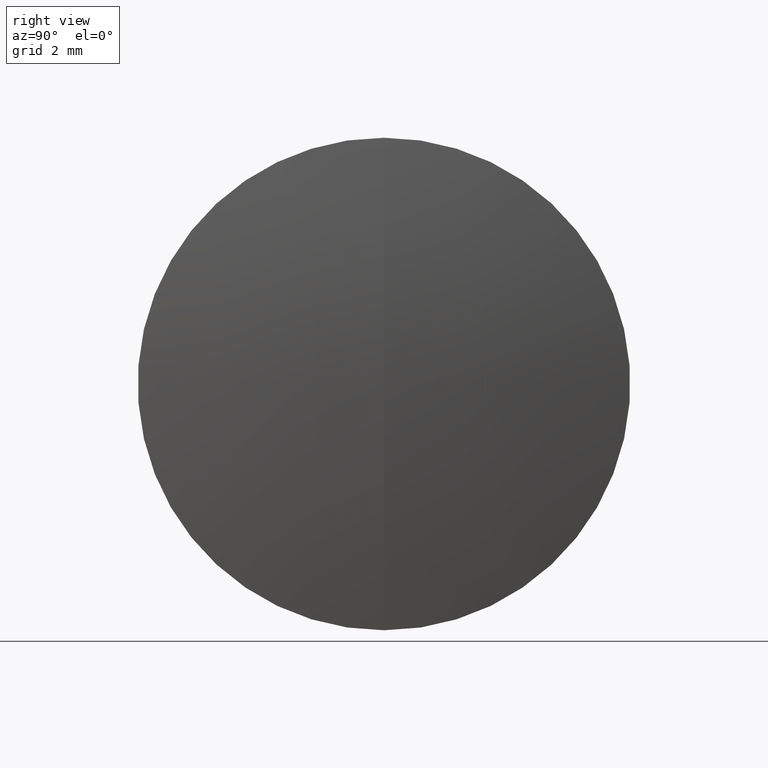
[diagram: clean part render]
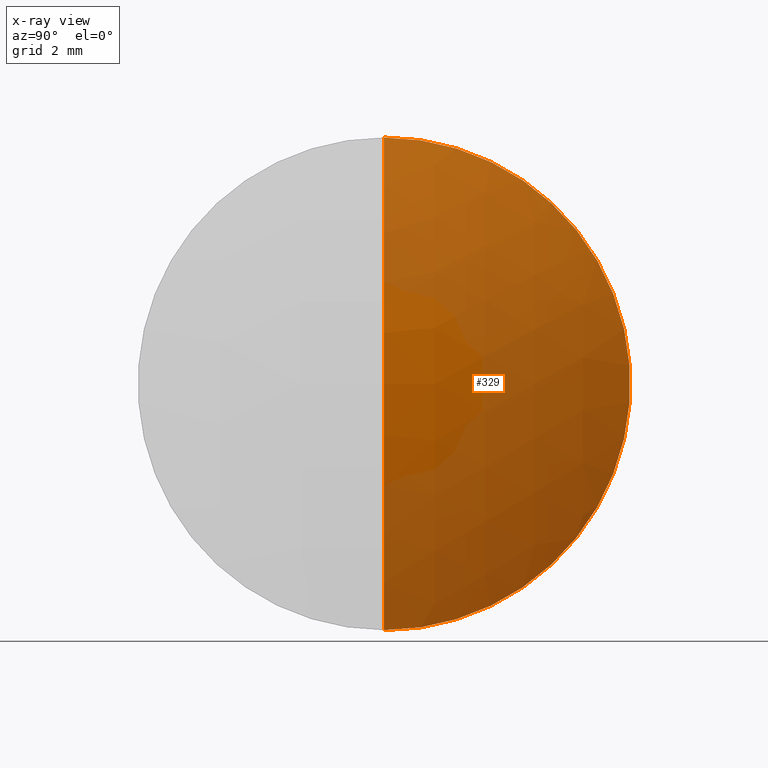
[diagram: x-ray — body ghosted, one internal face saturated and labeled with its STEP entity id]
A machine part, right view, then the same camera in x-ray: the body is ghosted and one INTERNAL B-rep face — a face not visible from any outside direction — is saturated and labeled: STEP entity #329.
In plain terms, the highlighted spherical surface has radius 14.496 mm.
Its self-contained STEP definition (entity closure, byte-faithful):
#4 = VERTEX_POINT ( 'NONE', #335 ) ;
#23 = DIRECTION ( 'NONE',  ( 0.0000000000000000000, -1.224646799147353200E-016, 1.000000000000000000 ) ) ;
#25 = CARTESIAN_POINT ( 'NONE',  ( -11.80707921926129200, 0.0000000000000000000, -8.469364311325082000E-016 ) ) ;
#29 = AXIS2_PLACEMENT_3D ( 'NONE', #25, #152, #23 ) ;
#40 = ORIENTED_EDGE ( 'NONE', *, *, #191, .T. ) ;
#75 = DIRECTION ( 'NONE',  ( 0.0000000000000000000, 0.0000000000000000000, 1.000000000000000000 ) ) ;
#82 = CARTESIAN_POINT ( 'NONE',  ( -11.80707921926129200, 0.0000000000000000000, -8.469364311325082000E-016 ) ) ;
#88 = FACE_OUTER_BOUND ( 'NONE', #310, .T. ) ;
#114 = VERTEX_POINT ( 'NONE', #206 ) ;
#119 = ORIENTED_EDGE ( 'NONE', *, *, #200, .F. ) ;
#138 = CIRCLE ( 'NONE', #166, 14.49600000000000200 ) ;
#145 = AXIS2_PLACEMENT_3D ( 'NONE', #271, #242, #75 ) ;
#146 = CIRCLE ( 'NONE', #29, 14.49600000000000200 ) ;
#151 = CARTESIAN_POINT ( 'NONE',  ( 1.272351808119067900, 0.0000000000000000000, 6.249999999999999100 ) ) ;
#152 = DIRECTION ( 'NONE',  ( -0.0000000000000000000, 1.000000000000000000, 1.224646799147353200E-016 ) ) ;
#166 = AXIS2_PLACEMENT_3D ( 'NONE', #82, #301, #303 ) ;
#182 = DIRECTION ( 'NONE',  ( 0.0000000000000000000, 1.000000000000000000, 0.0000000000000000000 ) ) ;
#191 = EDGE_CURVE ( 'NONE', #4, #114, #146, .T. ) ;
#200 = EDGE_CURVE ( 'NONE', #344, #114, #247, .T. ) ;
#206 = CARTESIAN_POINT ( 'NONE',  ( 1.272351808119067900, 7.654042494670956600E-016, -6.249999999999999100 ) ) ;
#213 = ORIENTED_EDGE ( 'NONE', *, *, #337, .F. ) ;
#238 = DIRECTION ( 'NONE',  ( 0.0000000000000000000, 0.0000000000000000000, 1.000000000000000000 ) ) ;
#242 = DIRECTION ( 'NONE',  ( -1.000000000000000000, -0.0000000000000000000, -0.0000000000000000000 ) ) ;
#247 = CIRCLE ( 'NONE', #145, 6.249999999999999100 ) ;
#268 = CARTESIAN_POINT ( 'NONE',  ( -11.80707921926129200, 0.0000000000000000000, -8.469364311325082000E-016 ) ) ;
#271 = CARTESIAN_POINT ( 'NONE',  ( 1.272351808119067900, 0.0000000000000000000, 0.0000000000000000000 ) ) ;
#284 = AXIS2_PLACEMENT_3D ( 'NONE', #268, #182, #238 ) ;
#301 = DIRECTION ( 'NONE',  ( 0.0000000000000000000, -1.000000000000000000, 0.0000000000000000000 ) ) ;
#303 = DIRECTION ( 'NONE',  ( 0.0000000000000000000, 0.0000000000000000000, -1.000000000000000000 ) ) ;
#310 = EDGE_LOOP ( 'NONE', ( #213, #40, #119 ) ) ;
#313 = SPHERICAL_SURFACE ( 'NONE', #284, 14.49600000000000200 ) ;
#329 = ADVANCED_FACE ( 'NONE', ( #88 ), #313, .T. ) ;
#335 = CARTESIAN_POINT ( 'NONE',  ( 2.688920780738710500, 0.0000000000000000000, 4.068756888949350500E-017 ) ) ;
#337 = EDGE_CURVE ( 'NONE', #4, #344, #138, .T. ) ;
#344 = VERTEX_POINT ( 'NONE', #151 ) ;